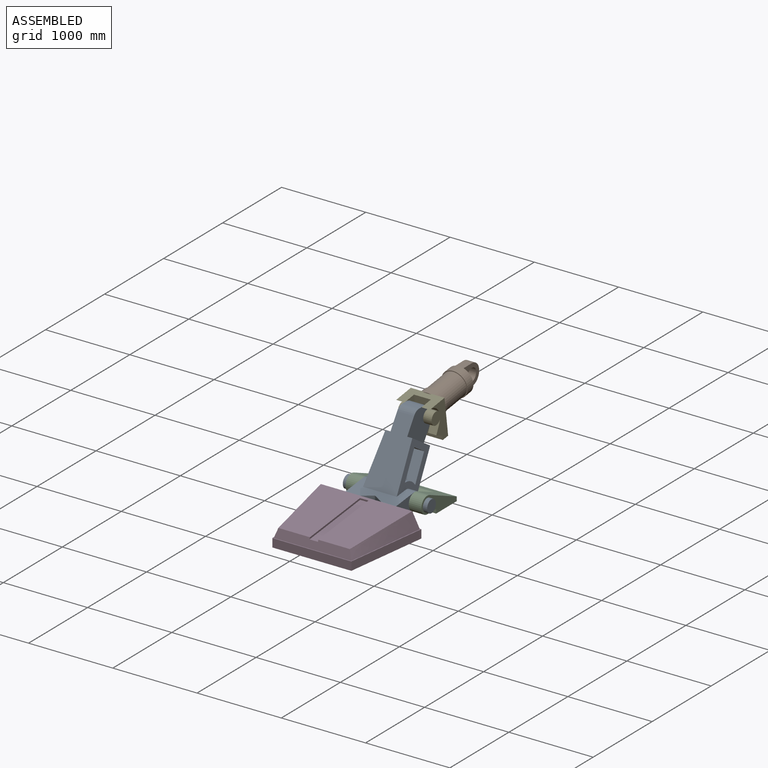
[diagram: assembled view]
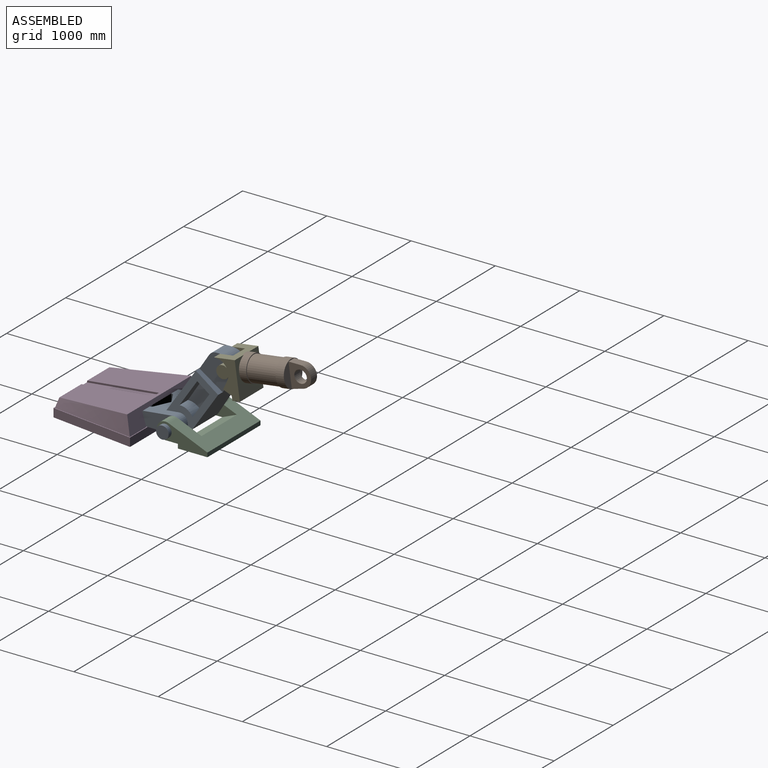
[diagram: assembled view, second angle]
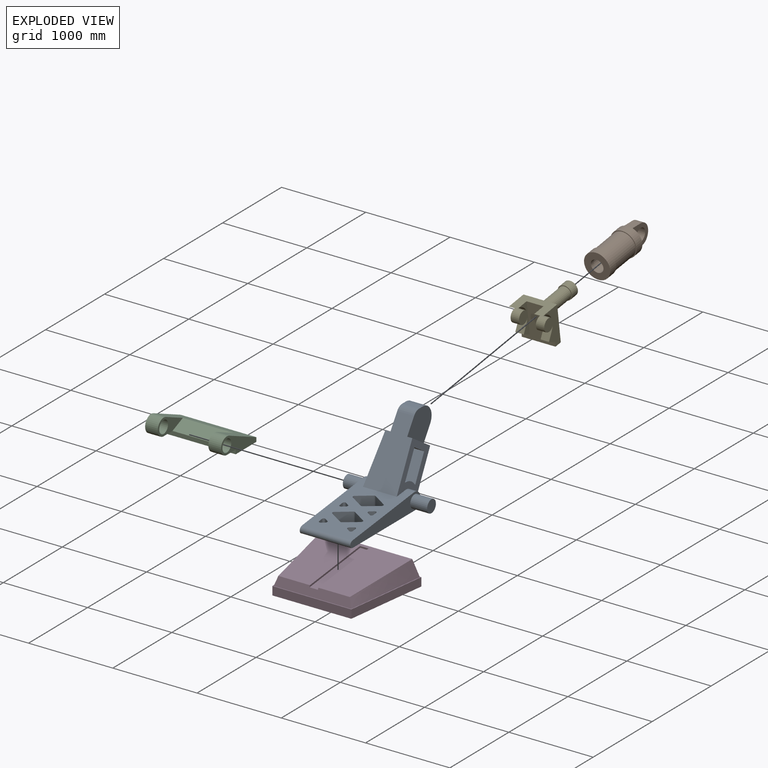
[diagram: exploded view]
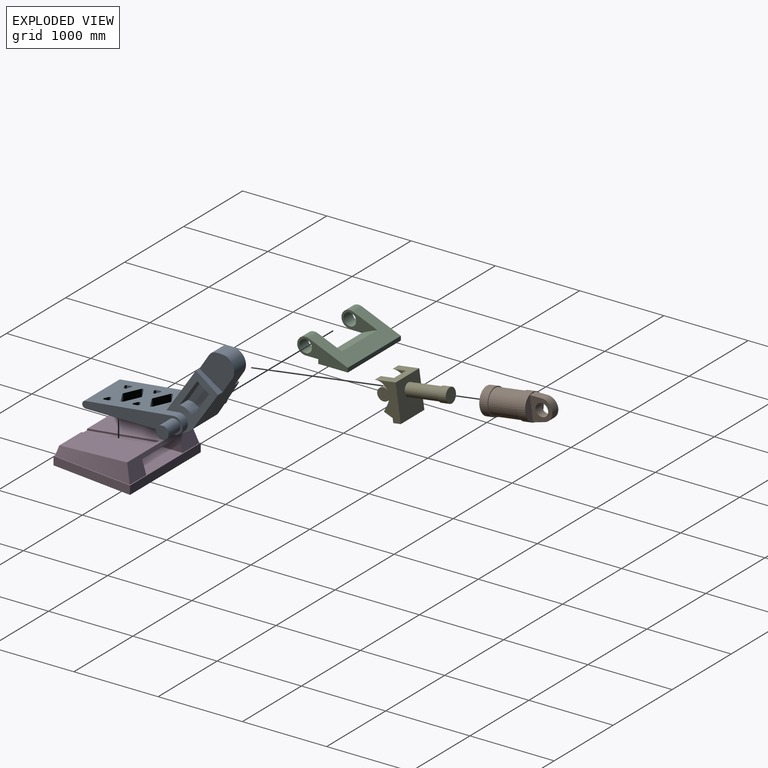
[diagram: exploded view, second angle]
ASSEMBLY  parts=5 mates=3
PART A: 73 faces, bbox 1000x1663.8x901.3 mm
  f0: plane 677.29x597.96mm, normal (1,-0.01,0.09), area 112728.6mm2, adj f1,f6,f9,f56,f57,f58,f68,f69
  f1: plane 673.29x437.24mm, normal (0,-0.84,0.54), area 255045.1mm2, adj f0,f2,f6,f58,f59,f60,f61,f62
  f2: plane 677.29x597.96mm, normal (-1,-0.01,0.09), area 112728.6mm2, adj f1,f5,f6,f56,f57,f60,f63,f64
  f3: plane 200x62.71mm, normal (0,0,1), area 12542.3mm2, adj f4,f59,f61,f62
  f4: cylinder r=150mm len=231.7mm, axis (-1,0,0), area 64402.6mm2, adj f3,f57,f59,f61
  f5: cylinder r=100mm len=200mm, axis (-1,0,0), area 29595.9mm2, adj f2,f6,f7,f11
  f6: plane 1043.36x600mm, normal (0,-0.11,0.99), area 457170.6mm2, adj f0,f1,f2,f5,f8,f9,f10,f11
  f7: plane 1050x600mm, normal (0,0,-1), area 518119.7mm2, adj f5,f8,f9,f10,f11,f16,f17,f18
  f8: cylinder r=40.86mm len=600mm, axis (-1,0,0), area 74269.2mm2, adj f6,f7,f10,f11
  f9: cylinder r=100mm len=200mm, axis (-1,0,0), area 29595.9mm2, adj f0,f6,f7,f10
  f10: plane 1190.86x200mm, normal (1,0,0), area 149036.2mm2, adj f6,f7,f8,f9,f14
  f11: plane 1190.86x200mm, normal (-1,0,0), area 149036.2mm2, adj f5,f6,f7,f8,f12
  f12: cylinder r=75mm len=200mm, axis (1,0,0), area 94247.8mm2, adj f11,f13
  f13: plane 150x150mm, normal (-1,0,0), area 17671.5mm2, adj f12
  f14: cylinder r=75mm len=200mm, axis (-1,0,0), area 94247.8mm2, adj f10,f15
  f15: plane 150x150mm, normal (1,0,0), area 17671.5mm2, adj f14
  f16: plane 105.72x40.42mm, normal (0.5,-0.87,0), area 4876.9mm2, adj f6,f7,f19,f21
  f17: plane 99.17x40.42mm, normal (0.5,0.87,0), area 4570.6mm2, adj f6,f7,f20,f21
  f18: plane 103.77x46.85mm, normal (-1,0,0), area 4737.8mm2, adj f6,f7,f19,f20
  f19: cylinder r=20mm len=106.03mm, axis (0,0,-1), area 4418mm2, adj f6,f7,f16,f18
  f20: cylinder r=20mm len=98.47mm, axis (0,0,1), area 4060.4mm2, adj f6,f7,f17,f18
  f21: cylinder r=20mm len=103.08mm, axis (0,0,1), area 4228.8mm2, adj f6,f7,f16,f17
  f22: plane 145.02x40.42mm, normal (0.5,-0.87,0), area 6712.7mm2, adj f6,f7,f25,f27
  f23: plane 138.46x40.42mm, normal (0.5,0.87,0), area 6406.4mm2, adj f6,f7,f26,f27
  f24: plane 143.07x46.85mm, normal (-1,0,0), area 6579.1mm2, adj f6,f7,f25,f26
  f25: cylinder r=20mm len=145.33mm, axis (0,0,-1), area 6065.5mm2, adj f6,f7,f22,f24
  f26: cylinder r=20mm len=137.77mm, axis (0,0,1), area 5707.9mm2, adj f6,f7,f23,f24
  f27: cylinder r=20mm len=142.37mm, axis (0,0,1), area 5872.2mm2, adj f6,f7,f22,f23
  f28: plane 145.02x40.42mm, normal (-0.5,-0.87,0), area 6712.7mm2, adj f6,f7,f31,f33
  f29: plane 138.46x40.42mm, normal (-0.5,0.87,0), area 6406.4mm2, adj f6,f7,f32,f33
  f30: plane 143.07x46.85mm, normal (1,0,0), area 6579.1mm2, adj f6,f7,f31,f32
  f31: cylinder r=20mm len=145.33mm, axis (0,0,1), area 6065.5mm2, adj f6,f7,f28,f30
  f32: cylinder r=20mm len=137.77mm, axis (0,0,-1), area 5707.9mm2, adj f6,f7,f29,f30
  f33: cylinder r=20mm len=142.37mm, axis (0,0,1), area 5872.2mm2, adj f6,f7,f28,f29
  f34: plane 160.42x133.23mm, normal (-0.5,-0.87,0), area 23729.3mm2, adj f6,f7,f40,f41
  f35: plane 160.42x133.23mm, normal (0.5,-0.87,0), area 23729.3mm2, adj f6,f7,f39,f41
  f36: plane 160.42x118.81mm, normal (0.5,0.87,0), area 21056.1mm2, adj f6,f7,f38,f39
  f37: plane 160.42x118.81mm, normal (-0.5,0.87,0), area 21056.1mm2, adj f6,f7,f38,f40
  f38: cylinder r=20mm len=108.31mm, axis (0,0,-1), area 2271.6mm2, adj f6,f7,f36,f37
  f39: cylinder r=20mm len=122.73mm, axis (0,0,1), area 5050.5mm2, adj f6,f7,f35,f36
  f40: cylinder r=20mm len=122.73mm, axis (0,0,1), area 5050.5mm2, adj f6,f7,f34,f37
  f41: cylinder r=20mm len=133.54mm, axis (0,0,-1), area 2803.8mm2, adj f6,f7,f34,f35
  f42: plane 99.17x40.42mm, normal (-0.5,0.87,0), area 4570.6mm2, adj f6,f7,f45,f47
  f43: plane 105.72x40.42mm, normal (-0.5,-0.87,0), area 4876.9mm2, adj f6,f7,f46,f47
  f44: plane 103.77x46.85mm, normal (1,0,0), area 4737.8mm2, adj f6,f7,f45,f46
  f45: cylinder r=20mm len=98.47mm, axis (0,0,-1), area 4060.4mm2, adj f6,f7,f42,f44
  f46: cylinder r=20mm len=106.03mm, axis (0,0,1), area 4418mm2, adj f6,f7,f43,f44
  f47: cylinder r=20mm len=103.08mm, axis (0,0,1), area 4228.8mm2, adj f6,f7,f42,f43
  f48: plane 172.53x160.42mm, normal (-0.5,-0.87,0), area 31015.9mm2, adj f6,f7,f54,f55
  f49: plane 172.53x160.42mm, normal (0.5,-0.87,0), area 31015.9mm2, adj f6,f7,f53,f55
  f50: plane 160.42x158.11mm, normal (0.5,0.87,0), area 28342.7mm2, adj f6,f7,f52,f53
  f51: plane 160.42x158.11mm, normal (-0.5,0.87,0), area 28342.7mm2, adj f6,f7,f52,f54
  f52: cylinder r=20mm len=147.61mm, axis (0,0,-1), area 3097.4mm2, adj f6,f7,f50,f51
  f53: cylinder r=20mm len=162.02mm, axis (0,0,1), area 6693.9mm2, adj f6,f7,f49,f50
  f54: cylinder r=20mm len=162.02mm, axis (0,0,1), area 6693.9mm2, adj f6,f7,f48,f51
  f55: cylinder r=20mm len=172.84mm, axis (0,0,-1), area 3629.6mm2, adj f6,f7,f48,f49
  f56: cylinder r=209.8mm len=435.12mm, axis (-1,0,0), area 89967.7mm2, adj f0,f2,f7,f57
  f57: plane 574.05x421.73mm, normal (0,0.84,-0.54), area 227677.1mm2, adj f0,f2,f4,f56,f58,f59,f60,f61
  f58: plane 276.62x179.64mm, normal (0,0.54,0.84), area 22858.7mm2, adj f0,f1,f57,f59
  f59: plane 412.47x403.62mm, normal (1,0,0), area 105666.8mm2, adj f1,f3,f4,f57,f58,f62
  f60: plane 276.62x179.64mm, normal (0,0.54,0.84), area 22858.7mm2, adj f1,f2,f57,f61
  f61: plane 412.47x403.62mm, normal (-1,0,0), area 105666.8mm2, adj f1,f3,f4,f57,f60,f62
  f62: cylinder r=100mm len=200mm, axis (-1,0,0), area 19896.8mm2, adj f1,f3,f59,f61
  f63: plane 150.82x129.37mm, normal (0,-0.54,-0.84), area 22365.4mm2, adj f2,f64,f66,f67
  f64: plane 283.85x184.33mm, normal (0,-0.84,0.54), area 47654.5mm2, adj f2,f63,f65,f67
  f65: cylinder r=175mm len=160.61mm, axis (-1,0,0), area 27846.2mm2, adj f2,f64,f66,f67
  f66: plane 298.93x194.13mm, normal (0,0.84,-0.54), area 46840.3mm2, adj f2,f63,f65,f67
  f67: plane 381.79x344.94mm, normal (-1,0,0), area 59404.3mm2, adj f63,f64,f65,f66
  f68: plane 150.82x129.37mm, normal (0,-0.54,-0.84), area 22365.4mm2, adj f0,f69,f71,f72
  f69: plane 298.93x194.13mm, normal (0,0.84,-0.54), area 46840.3mm2, adj f0,f68,f70,f72
  f70: cylinder r=175mm len=160.61mm, axis (1,0,0), area 27846.2mm2, adj f0,f69,f71,f72
  f71: plane 283.85x184.33mm, normal (0,-0.84,0.54), area 47654.5mm2, adj f0,f68,f70,f72
  f72: plane 381.79x344.94mm, normal (1,0,0), area 59404.3mm2, adj f68,f69,f70,f71
PART B: 17 faces, bbox 310x800x310 mm
  f0: plane 310x310mm, normal (0,1,0), area 46969.7mm2, adj f1,f11,f14,f15,f16
  f1: cylinder r=155mm len=310mm, axis (0,1,0), area 97389.4mm2, adj f0,f2
  f2: plane 310x310mm, normal (0,-1,0), area 9424.8mm2, adj f1,f3
  f3: cylinder r=145mm len=350mm, axis (0,1,0), area 318871.7mm2, adj f2,f4
  f4: plane 310x310mm, normal (0,1,0), area 9424.8mm2, adj f3,f5
  f5: cylinder r=155mm len=310mm, axis (0,1,0), area 97389.4mm2, adj f4,f6
  f6: plane 310x310mm, normal (0,-1,0), area 57805.3mm2, adj f5,f7
  f7: cylinder r=75mm len=150mm, axis (0,1,0), area 23561.9mm2, adj f6,f8
  f8: plane 170x170mm, normal (0,1,0), area 5026.5mm2, adj f7,f9
  f9: cylinder r=85mm len=450mm, axis (0,1,0), area 240331.8mm2, adj f8,f10
  f10: plane 170x170mm, normal (0,-1,0), area 22698mm2, adj f9
  f11: plane 141.32x100mm, normal (0,0.13,-0.99), area 14253.5mm2, adj f0,f12,f15,f16
  f12: cylinder r=125mm len=247.86mm, axis (-1,0,0), area 35997.4mm2, adj f11,f14,f15,f16
  f13: cylinder r=75mm len=150mm, axis (-1,0,0), area 47123.9mm2, adj f15,f16
  f14: plane 141.32x100mm, normal (0,0.13,0.99), area 14253.5mm2, adj f0,f12,f15,f16
  f15: plane 285.07x250mm, normal (1,0,0), area 40460.7mm2, adj f0,f11,f12,f13,f14
  f16: plane 285.07x250mm, normal (-1,0,0), area 40460.7mm2, adj f0,f11,f12,f13,f14
PART C: 15 faces, bbox 900x600x250 mm
  f0: plane 425x200mm, normal (1,0,0), area 37250mm2, adj f1,f5,f6,f7,f14
  f1: plane 150x150mm, normal (0,0,-1), area 22500mm2, adj f0,f2,f6,f8
  f2: plane 900x50mm, normal (0,-1,0), area 45000mm2, adj f1,f3,f8,f10,f13,f14
  f3: plane 900x350mm, normal (0,0,-1), area 315000mm2, adj f2,f4,f8,f13
  f4: plane 900x50mm, normal (0,1,0), area 45000mm2, adj f3,f5,f8,f13
  f5: plane 900x461.54mm, normal (0,0.38,0.92), area 263750mm2, adj f0,f4,f6,f8,f9,f11,f13,f14
  f6: cylinder r=100mm len=200mm, axis (1,0,0), area 53045.8mm2, adj f0,f1,f5,f8
  f7: cylinder r=75mm len=150mm, axis (1,0,0), area 70685.8mm2, adj f0,f8
  f8: plane 600x250mm, normal (-1,0,0), area 67510.5mm2, adj f1,f2,f3,f4,f5,f6,f7
  f9: plane 425x200mm, normal (-1,0,0), area 37250mm2, adj f5,f10,f11,f12,f14
  f10: plane 150x150mm, normal (0,0,-1), area 22500mm2, adj f2,f9,f11,f13
  f11: cylinder r=100mm len=200mm, axis (-1,0,0), area 53045.8mm2, adj f5,f9,f10,f13
  f12: cylinder r=75mm len=150mm, axis (-1,0,0), area 70685.8mm2, adj f9,f13
  f13: plane 600x250mm, normal (1,0,0), area 67510.5mm2, adj f2,f3,f4,f5,f10,f11,f12
  f14: plane 600x175mm, normal (0,-0.38,0.92), area 113750mm2, adj f0,f2,f5,f9
PART D: 19 faces, bbox 1200x1000x307.2 mm
  f0: plane 1085.88x888.03mm, normal (0,-0.11,0.99), area 779085.3mm2, adj f1,f8,f9,f10,f15,f16,f17
  f1: plane 919.16x106.83mm, normal (0,-0.97,0.26), area 95553.4mm2, adj f0,f2,f8,f10,f15,f17,f18
  f2: plane 1200x1000mm, normal (0,0,1), area 491456.9mm2, adj f1,f3,f4,f5,f6,f8,f9,f10
  f3: plane 936.7x100mm, normal (0,-1,0), area 93669.5mm2, adj f2,f4,f6,f7
  f4: plane 1000x131.65mm, normal (0.99,-0.13,0), area 100862.9mm2, adj f2,f3,f5,f7
  f5: plane 1200x100mm, normal (0,1,0), area 120000mm2, adj f2,f4,f6,f7
  f6: plane 1000x131.65mm, normal (-0.99,-0.13,0), area 100862.9mm2, adj f2,f3,f5,f7
  f7: plane 1200x1000mm, normal (0,0,-1), area 1068347.5mm2, adj f3,f4,f5,f6
  f8: bspline ~980x207.18mm, area 153431.4mm2, adj f0,f1,f2,f9
  f9: plane 1177.19x207.18mm, normal (0,0.96,0.29), area 142423.5mm2, adj f0,f2,f8,f10,f11,f13,f14
  f10: bspline ~980x207.18mm, area 153431.4mm2, adj f0,f1,f2,f9
  f11: plane 682.14x620mm, normal (0,0.11,-0.99), area 425619.2mm2, adj f9,f12,f13,f14
  f12: cylinder r=40.86mm len=620mm, axis (-1,0,0), area 76744.9mm2, adj f2,f11,f13,f14
  f13: plane 767.19x158.55mm, normal (-1,0,0), area 87979.3mm2, adj f2,f9,f11,f12
  f14: plane 767.19x158.55mm, normal (1,0,0), area 87979.3mm2, adj f2,f9,f11,f12
  f15: plane 857.55x116.77mm, normal (-1,0,0), area 17182.4mm2, adj f0,f1,f16,f18
  f16: plane 100x19.87mm, normal (0,-0.99,-0.11), area 2000mm2, adj f0,f15,f17,f18
  f17: plane 857.55x116.77mm, normal (1,0,0), area 17182.4mm2, adj f0,f1,f16,f18
  f18: plane 857.55x100mm, normal (0,-0.11,0.99), area 86301mm2, adj f1,f15,f16,f17
PART E: 22 faces, bbox 400x750x434.4 mm
  f0: cylinder r=75mm len=400mm, axis (0,-1,0), area 188495.6mm2, adj f7,f20
  f1: plane 100x96.1mm, normal (0,-0.5,-0.87), area 11095.5mm2, adj f2,f8,f9,f10
  f2: plane 382.47x160mm, normal (1,0,0), area 33753mm2, adj f1,f3,f4,f5,f6,f8,f10
  f3: cylinder r=150mm len=100mm, axis (1,0,0), area 4770.9mm2, adj f2,f4,f8,f9
  f4: cylinder r=75mm len=150mm, axis (1,0,0), area 37035.1mm2, adj f2,f3,f5,f9
  f5: cylinder r=150mm len=139.54mm, axis (1,0,0), area 17927.1mm2, adj f2,f4,f6,f9
  f6: plane 400x250mm, normal (0,0,1), area 68000mm2, adj f2,f5,f7,f9,f10,f12,f15,f17
  f7: plane 434.42x400mm, normal (0,1,0), area 156096.1mm2, adj f0,f6,f9,f17,f18
  f8: plane 100x95.32mm, normal (0,-0.84,0.54), area 11365mm2, adj f1,f2,f3,f9
  f9: plane 434.42x250mm, normal (-1,0,0), area 72850.7mm2, adj f1,f3,f4,f5,f6,f7,f8,f10
  f10: plane 434.42x400mm, normal (0,-1,0), area 97272.6mm2, adj f1,f2,f6,f9,f11,f12,f17,f18
  f11: plane 100x96.1mm, normal (0,-0.5,-0.87), area 11095.5mm2, adj f10,f12,f16,f17
  f12: plane 382.47x160mm, normal (-1,0,0), area 33753mm2, adj f6,f10,f11,f13,f14,f15,f16
  f13: cylinder r=150mm len=100mm, axis (-1,0,0), area 4770.9mm2, adj f12,f14,f16,f17
  f14: cylinder r=75mm len=150mm, axis (-1,0,0), area 37035.1mm2, adj f12,f13,f15,f17
  f15: cylinder r=150mm len=139.54mm, axis (-1,0,0), area 17927.1mm2, adj f6,f12,f14,f17
  f16: plane 100x95.32mm, normal (0,-0.84,0.54), area 11365mm2, adj f11,f12,f13,f17
  f17: plane 434.42x250mm, normal (1,0,0), area 72850.7mm2, adj f6,f7,f10,f11,f13,f14,f15,f16
  f18: plane 400x90mm, normal (0,0,-1), area 36000mm2, adj f7,f9,f10,f17
  f19: cylinder r=85mm len=170mm, axis (0,1,0), area 53407.1mm2, adj f20,f21
  f20: plane 170x170mm, normal (0,-1,0), area 5026.5mm2, adj f0,f19
  f21: plane 170x170mm, normal (0,1,0), area 22698mm2, adj f19
PLACE A rot(axis=(-1,0,0),0deg) t=(-459.89,173.92,1508.91)mm
PLACE B rot(axis=(1,0,0),8.1deg) t=(-459.89,274.66,1410.81)mm
PLACE C t=(-459.89,173.92,1508.91)mm fixed
PLACE D rot(axis=(-1,0,0),0deg) t=(-459.89,173.92,1508.91)mm
PLACE E rot(axis=(1,0,0),8.1deg) t=(-459.89,287.17,1412.59)mm
MATE fastened A.f8 <-> D.f12  axis (-1,0,0) through (-159.89,-562.4,1549.78)mm
MATE revolute C.f6 <-> A.f5  axis (-1,0,0) through (140.11,487.6,1608.91)mm
MATE slider B.f1 <-> E.f19  axis (0,-0.99,-0.14) through (-159.89,1145.2,2296.11)mm
